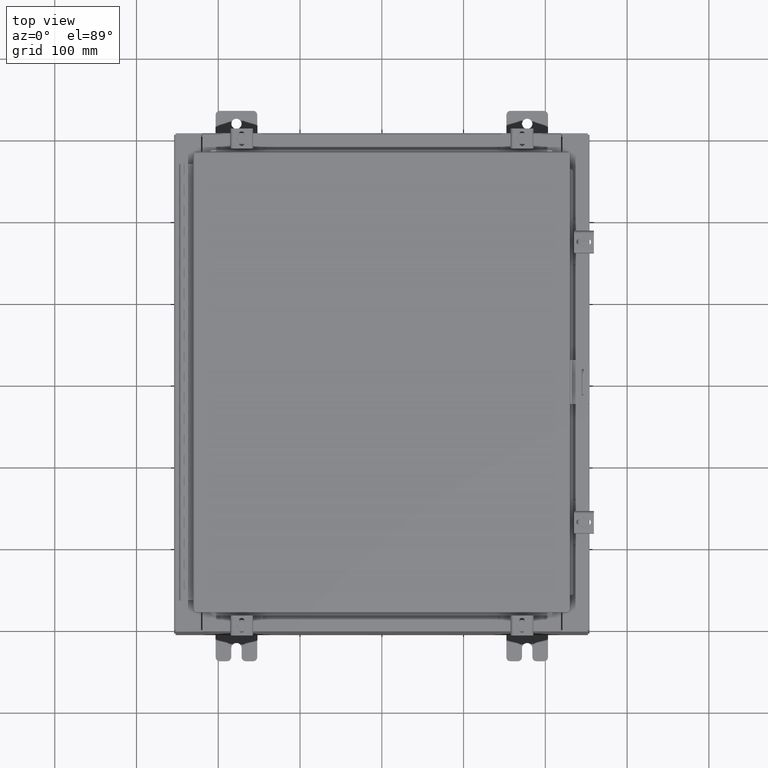
[diagram: clean part render]
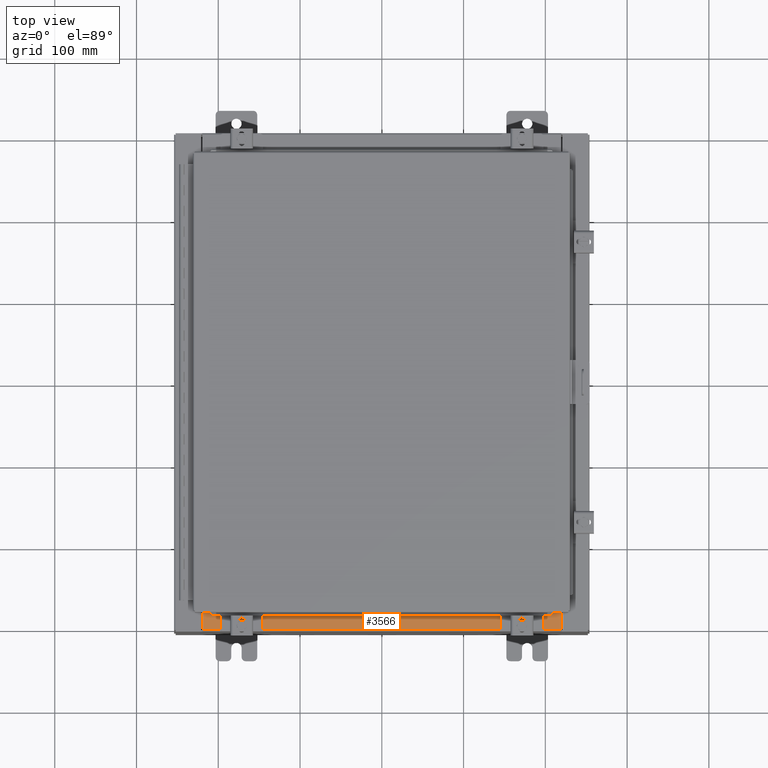
[diagram: same view with one face highlighted and labeled with its STEP entity id]
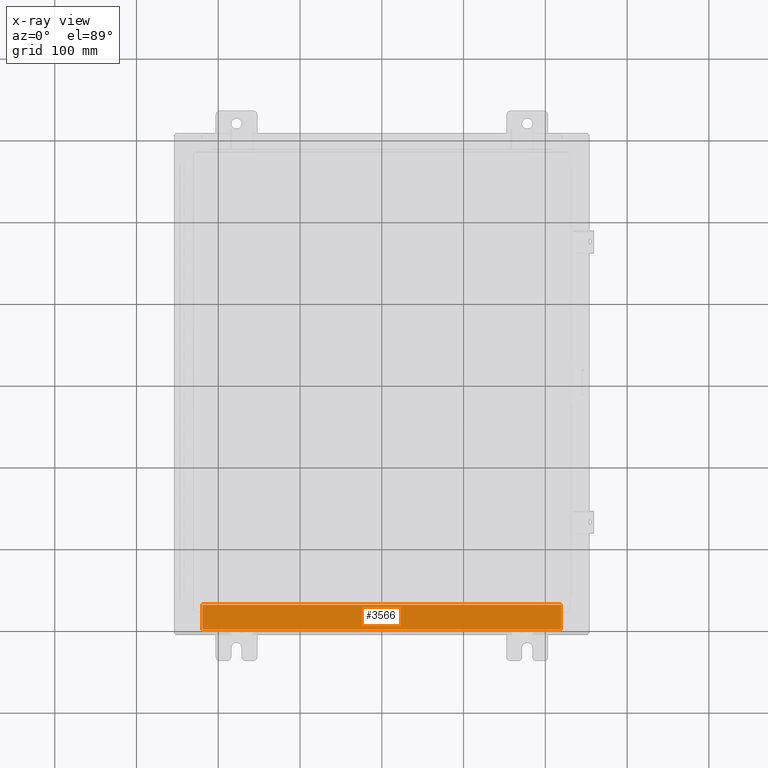
[diagram: x-ray of the same camera — body ghosted, the highlighted face saturated]
A machine part, top view. The second image highlights one B-rep face of the part: STEP entity #3566.
The next image is the same camera in x-ray: the body ghosted, the highlighted face saturated — about 0% of this face is hidden behind the body in this view.
In plain terms, the highlighted planar face has unit normal (-0, -0, 1).
Its self-contained STEP definition (entity closure, byte-faithful):
#61 = VECTOR ( 'NONE', #32895, 39.37007874015748100 ) ;
#706 = PLANE ( 'NONE',  #21795 ) ;
#2615 = EDGE_LOOP ( 'NONE', ( #22801, #23298, #19862, #14235 ) ) ;
#3566 = ADVANCED_FACE ( 'NONE', ( #30234 ), #706, .T. ) ;
#3637 = EDGE_CURVE ( 'NONE', #19323, #30032, #21110, .T. ) ;
#5233 = LINE ( 'NONE', #10903, #30672 ) ;
#5361 = DIRECTION ( 'NONE',  ( 2.688223102148497900E-016, 1.000000000000000000, -3.734140369554233100E-015 ) ) ;
#5837 = CARTESIAN_POINT ( 'NONE',  ( 4.163336342914244900E-015, 1.748382715945128500E-014, 5.000000000000011500 ) ) ;
#5913 = DIRECTION ( 'NONE',  ( -1.000000000000000000, -3.320800324781849000E-016, -8.326672684688670100E-016 ) ) ;
#6156 = CARTESIAN_POINT ( 'NONE',  ( 8.637200000000000000, -0.08770000000000026400, 5.000000000000011500 ) ) ;
#6167 = DIRECTION ( 'NONE',  ( -1.000000000000000000, -2.688223102148527500E-016, -8.326672684688674100E-016 ) ) ;
#6701 = CARTESIAN_POINT ( 'NONE',  ( -8.637200000000000000, -0.08770000000000026400, 5.000000000000000000 ) ) ;
#8381 = DIRECTION ( 'NONE',  ( 8.326672684688675000E-016, 3.734140369554233100E-015, 1.000000000000000000 ) ) ;
#10005 = CARTESIAN_POINT ( 'NONE',  ( -8.637200000000000000, -1.287299999999999200, 5.000000000000004400 ) ) ;
#10903 = CARTESIAN_POINT ( 'NONE',  ( 4.145308328695717700E-015, -0.08770000000000026400, 5.000000000000011500 ) ) ;
#11668 = EDGE_CURVE ( 'NONE', #31719, #19323, #13594, .T. ) ;
#11739 = EDGE_CURVE ( 'NONE', #31719, #27717, #5233, .T. ) ;
#13594 = LINE ( 'NONE', #30452, #61 ) ;
#14235 = ORIENTED_EDGE ( 'NONE', *, *, #11739, .T. ) ;
#14337 = VECTOR ( 'NONE', #6167, 39.37007874015748100 ) ;
#14387 = CARTESIAN_POINT ( 'NONE',  ( 8.637200000000000000, -1.287299999999999200, 5.000000000000015100 ) ) ;
#18051 = CARTESIAN_POINT ( 'NONE',  ( -8.637200000000000000, -0.07470000000000015500, 5.000000000000000000 ) ) ;
#18853 = CARTESIAN_POINT ( 'NONE',  ( 8.637200000000000000, -1.287299999999999200, 5.000000000000013300 ) ) ;
#19323 = VERTEX_POINT ( 'NONE', #14387 ) ;
#19862 = ORIENTED_EDGE ( 'NONE', *, *, #11668, .F. ) ;
#21110 = LINE ( 'NONE', #18853, #14337 ) ;
#21795 = AXIS2_PLACEMENT_3D ( 'NONE', #5837, #8381, #26158 ) ;
#22801 = ORIENTED_EDGE ( 'NONE', *, *, #28908, .F. ) ;
#23298 = ORIENTED_EDGE ( 'NONE', *, *, #3637, .F. ) ;
#26158 = DIRECTION ( 'NONE',  ( -2.688223102148497400E-016, -1.000000000000000000, 3.734140369554233100E-015 ) ) ;
#27717 = VERTEX_POINT ( 'NONE', #6701 ) ;
#28908 = EDGE_CURVE ( 'NONE', #30032, #27717, #31145, .T. ) ;
#30032 = VERTEX_POINT ( 'NONE', #10005 ) ;
#30234 = FACE_OUTER_BOUND ( 'NONE', #2615, .T. ) ;
#30336 = VECTOR ( 'NONE', #5361, 39.37007874015748100 ) ;
#30452 = CARTESIAN_POINT ( 'NONE',  ( 8.637200000000000000, -1.300299999999999300, 5.000000000000015100 ) ) ;
#30672 = VECTOR ( 'NONE', #5913, 39.37007874015748100 ) ;
#31145 = LINE ( 'NONE', #18051, #30336 ) ;
#31719 = VERTEX_POINT ( 'NONE', #6156 ) ;
#32895 = DIRECTION ( 'NONE',  ( -2.688223102148497900E-016, -1.000000000000000000, 3.734140369554233100E-015 ) ) ;